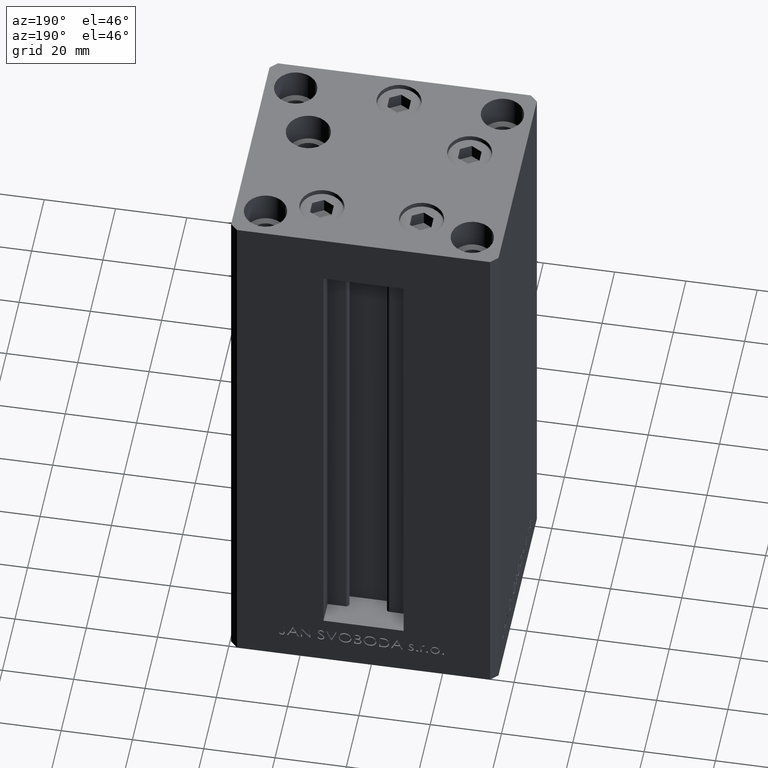
[diagram: clean part render]
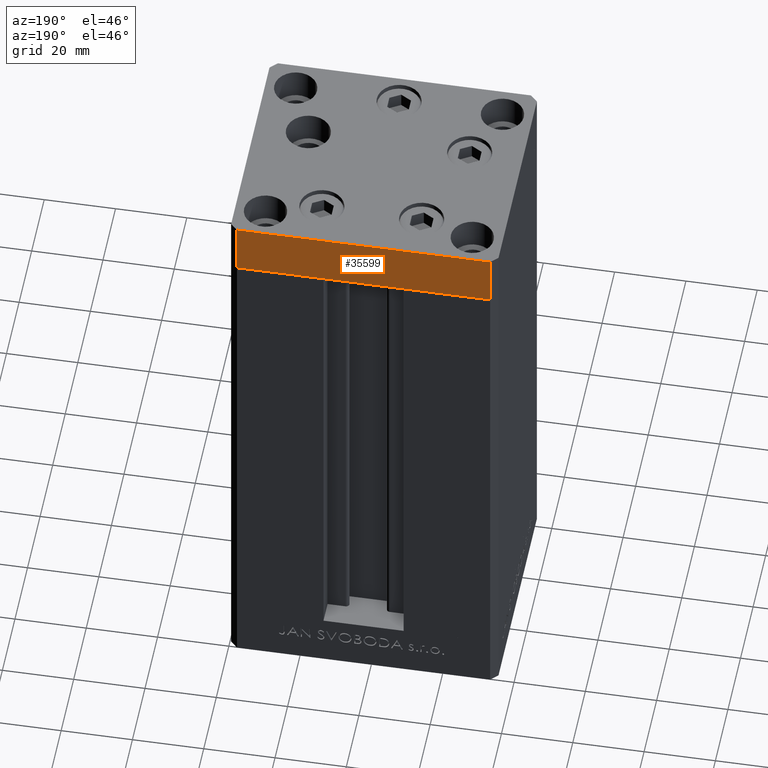
[diagram: same view with one face highlighted and labeled with its STEP entity id]
A machine part, auxiliary view. The second image highlights one B-rep face of the part: STEP entity #35599.
In plain terms, the highlighted planar face has unit normal (-0, 1, 0).
Its self-contained STEP definition (entity closure, byte-faithful):
#309 = DIRECTION ( 'NONE',  ( -1.000000000000000000, -1.954618001100629052E-16, 0.000000000000000000 ) ) ;
#321 = ORIENTED_EDGE ( 'NONE', *, *, #8664, .T. ) ;
#3170 = CARTESIAN_POINT ( 'NONE',  ( -35.50000000000002842, 32.49999999999999289, -15.00000000000000000 ) ) ;
#3702 = VERTEX_POINT ( 'NONE', #6243 ) ;
#4649 = CARTESIAN_POINT ( 'NONE',  ( 35.49999999999992184, 32.50000000000000711, -15.00000000000000000 ) ) ;
#5828 = LINE ( 'NONE', #36022, #34876 ) ;
#6243 = CARTESIAN_POINT ( 'NONE',  ( -35.50000000000002842, 32.49999999999999289, 0.000000000000000000 ) ) ;
#8339 = VECTOR ( 'NONE', #41915, 1000.000000000000000 ) ;
#8664 = EDGE_CURVE ( 'NONE', #13863, #3702, #5828, .T. ) ;
#13543 = LINE ( 'NONE', #17010, #21517 ) ;
#13863 = VERTEX_POINT ( 'NONE', #3170 ) ;
#13959 = VERTEX_POINT ( 'NONE', #4649 ) ;
#17010 = CARTESIAN_POINT ( 'NONE',  ( 35.49999999999992184, 32.50000000000000711, 0.000000000000000000 ) ) ;
#17167 = EDGE_CURVE ( 'NONE', #32610, #3702, #13543, .T. ) ;
#20089 = DIRECTION ( 'NONE',  ( -1.954618001100629052E-16, 1.000000000000000000, 0.000000000000000000 ) ) ;
#21517 = VECTOR ( 'NONE', #28908, 1000.000000000000000 ) ;
#22691 = ORIENTED_EDGE ( 'NONE', *, *, #17167, .F. ) ;
#22893 = LINE ( 'NONE', #26851, #8339 ) ;
#24659 = DIRECTION ( 'NONE',  ( 0.000000000000000000, 0.000000000000000000, 1.000000000000000000 ) ) ;
#26851 = CARTESIAN_POINT ( 'NONE',  ( 35.49999999999992184, 32.50000000000000711, -15.00000000000000000 ) ) ;
#28908 = DIRECTION ( 'NONE',  ( -1.000000000000000000, -1.954618001100629052E-16, 0.000000000000000000 ) ) ;
#29686 = EDGE_CURVE ( 'NONE', #13959, #13863, #22893, .T. ) ;
#30155 = CARTESIAN_POINT ( 'NONE',  ( 35.49999999999992184, 32.50000000000000711, 0.000000000000000000 ) ) ;
#32610 = VERTEX_POINT ( 'NONE', #30155 ) ;
#32629 = EDGE_CURVE ( 'NONE', #13959, #32610, #48442, .T. ) ;
#34876 = VECTOR ( 'NONE', #24659, 1000.000000000000000 ) ;
#35599 = ADVANCED_FACE ( 'NONE', ( #38660 ), #37934, .T. ) ;
#36022 = CARTESIAN_POINT ( 'NONE',  ( -35.50000000000002842, 32.49999999999999289, -15.00000000000000000 ) ) ;
#36921 = VECTOR ( 'NONE', #48198, 1000.000000000000000 ) ;
#37934 = PLANE ( 'NONE',  #44772 ) ;
#38660 = FACE_OUTER_BOUND ( 'NONE', #45765, .T. ) ;
#41915 = DIRECTION ( 'NONE',  ( -1.000000000000000000, -1.954618001100629052E-16, 0.000000000000000000 ) ) ;
#42669 = ORIENTED_EDGE ( 'NONE', *, *, #32629, .F. ) ;
#44494 = CARTESIAN_POINT ( 'NONE',  ( 35.49999999999992184, 32.50000000000000711, -15.00000000000000000 ) ) ;
#44772 = AXIS2_PLACEMENT_3D ( 'NONE', #46065, #20089, #309 ) ;
#45429 = ORIENTED_EDGE ( 'NONE', *, *, #29686, .T. ) ;
#45765 = EDGE_LOOP ( 'NONE', ( #22691, #42669, #45429, #321 ) ) ;
#46065 = CARTESIAN_POINT ( 'NONE',  ( 35.49999999999992184, 32.50000000000000711, -15.00000000000000000 ) ) ;
#48198 = DIRECTION ( 'NONE',  ( 0.000000000000000000, 0.000000000000000000, 1.000000000000000000 ) ) ;
#48442 = LINE ( 'NONE', #44494, #36921 ) ;